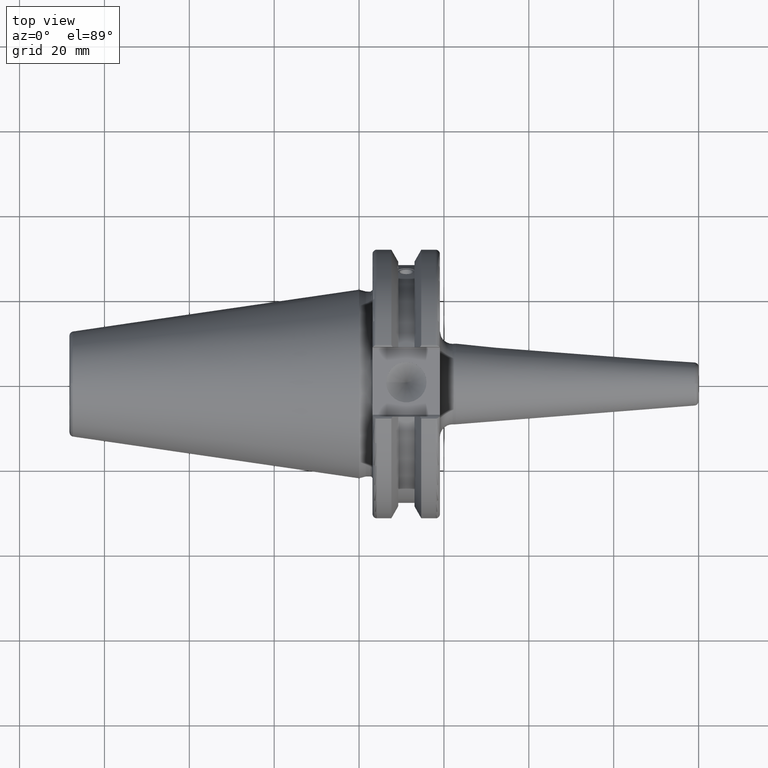
[diagram: clean part render]
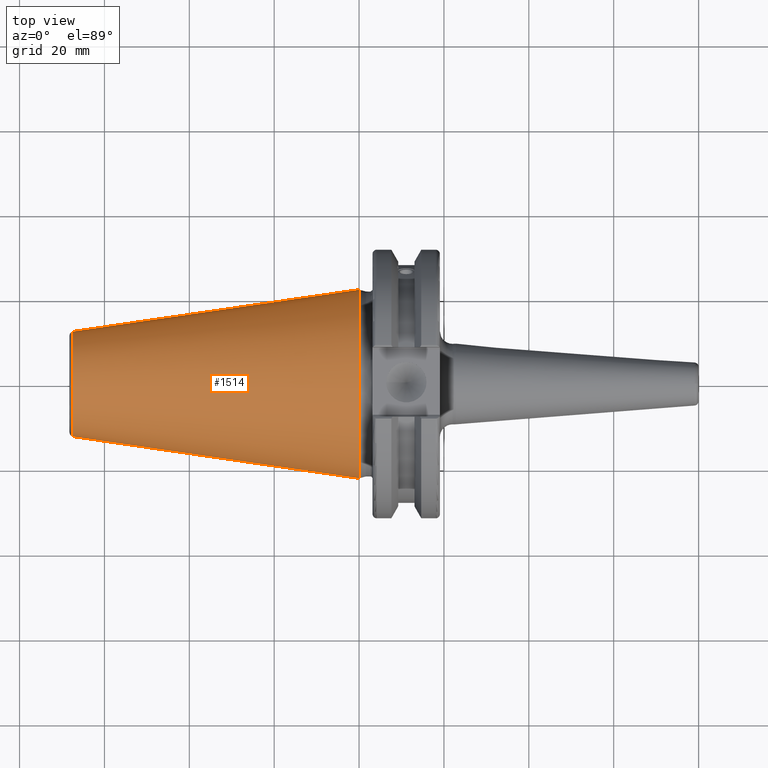
[diagram: same view with one face highlighted and labeled with its STEP entity id]
A machine part, top view. The second image highlights one B-rep face of the part: STEP entity #1514.
In plain terms, the highlighted conical surface has half-angle 8.297 deg.
Its self-contained STEP definition (entity closure, byte-faithful):
#230=LINE('',#2878,#324);
#324=VECTOR('',#2086,17.2484375);
#352=CONICAL_SURFACE('',#1699,17.2484375,0.144812498238939);
#414=FACE_OUTER_BOUND('',#511,.T.);
#511=EDGE_LOOP('',(#1318,#1319,#1320,#1321,#1322));
#596=CIRCLE('',#1693,12.3966635780937);
#597=CIRCLE('',#1694,12.3966635780937);
#601=CIRCLE('',#1700,22.225);
#748=VERTEX_POINT('',#2865);
#749=VERTEX_POINT('',#2866);
#752=VERTEX_POINT('',#2876);
#953=EDGE_CURVE('',#748,#749,#596,.T.);
#954=EDGE_CURVE('',#749,#748,#597,.T.);
#958=EDGE_CURVE('',#752,#752,#601,.T.);
#959=EDGE_CURVE('',#752,#749,#230,.T.);
#1318=ORIENTED_EDGE('',*,*,#958,.F.);
#1319=ORIENTED_EDGE('',*,*,#959,.T.);
#1320=ORIENTED_EDGE('',*,*,#953,.F.);
#1321=ORIENTED_EDGE('',*,*,#954,.F.);
#1322=ORIENTED_EDGE('',*,*,#959,.F.);
#1514=ADVANCED_FACE('',(#414),#352,.T.);
#1693=AXIS2_PLACEMENT_3D('',#2867,#2070,#2071);
#1694=AXIS2_PLACEMENT_3D('',#2868,#2072,#2073);
#1699=AXIS2_PLACEMENT_3D('',#2875,#2082,#2083);
#1700=AXIS2_PLACEMENT_3D('',#2877,#2084,#2085);
#2070=DIRECTION('center_axis',(-1.,0.,0.));
#2071=DIRECTION('ref_axis',(0.,-1.,3.06161699786838E-17));
#2072=DIRECTION('center_axis',(-1.,0.,0.));
#2073=DIRECTION('ref_axis',(0.,-1.,3.06161699786838E-17));
#2082=DIRECTION('center_axis',(1.,0.,0.));
#2083=DIRECTION('ref_axis',(0.,1.,0.));
#2084=DIRECTION('center_axis',(1.,0.,0.));
#2085=DIRECTION('ref_axis',(0.,0.,-1.));
#2086=DIRECTION('',(-0.989532981063282,0.144306893071729,1.76724974695192E-17));
#2865=CARTESIAN_POINT('',(-67.3943068930717,-1.5181534371019E-15,12.3966635780937));
#2866=CARTESIAN_POINT('',(-67.3943068930718,-12.3966635780937,-1.5181534371019E-15));
#2867=CARTESIAN_POINT('Origin',(-67.3943068930717,0.,-1.89769179637738E-15));
#2868=CARTESIAN_POINT('Origin',(-67.3943068930717,0.,-1.89769179637738E-15));
#2875=CARTESIAN_POINT('Origin',(-34.125,0.,0.));
#2876=CARTESIAN_POINT('',(0.,-22.225,-2.72177751110499E-15));
#2877=CARTESIAN_POINT('Origin',(0.,0.,0.));
#2878=CARTESIAN_POINT('',(-34.125,-17.2484375,-2.11232437746682E-15));